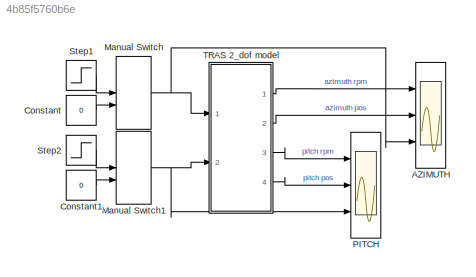
MODEL slx_4b85f5760b6e
KIND model
CONFIG PreLoadFcn = load tras_char
BLOCK [Scope] AZIMUTH
  DataFormat = StructureWithTime
  Floating = off
  NumInputPorts = 3
  Ports = [3]
  SampleTime = 0
  ShowLegends = off
  TimeRange = 20
  YMax = 10000~10~1
  YMin = -10000~-10~0
BLOCK [Constant] Constant
  Value = 0
BLOCK [Constant] Constant1
  Value = 0
BLOCK [ManualSwitch] Manual Switch
BLOCK [ManualSwitch] Manual Switch1
BLOCK [Scope] PITCH
  DataFormat = StructureWithTime
  Floating = off
  NumInputPorts = 3
  Ports = [3]
  SampleTime = 0
  SaveName = ScopeData1
  ShowLegends = off
  TimeRange = 20
  YMax = 5000~1~1
  YMin = -5000~-1~0
BLOCK [Step] Step1
  SampleTime = 0
BLOCK [Step] Step2
  SampleTime = 0
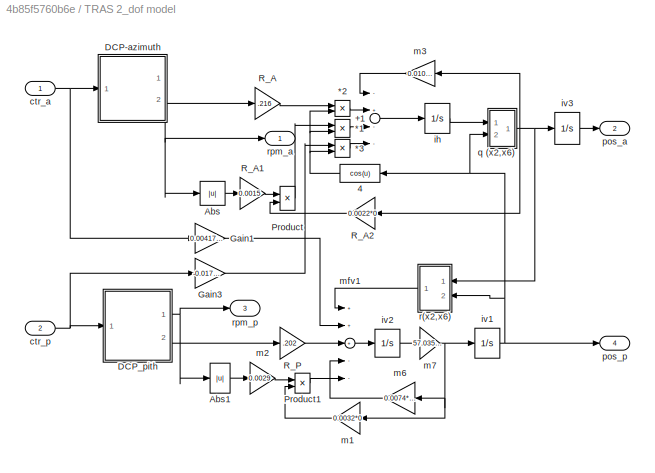
BLOCK [SubSystem] TRAS 2_dof model 
  FunctionWithSeparateData = off
  MaskHideContents = off
  MinAlgLoopOccurrences = off
  Opaque = off
  Ports = [2, 4]
  PropExecContextOutsideSubsystem = off
  RTWSystemCode = Auto
  RequestExecContextInheritance = off
BLOCK [Product] TRAS 2_dof model /*1
  Ports = [2, 1]
  RndMeth = Floor
BLOCK [Product] TRAS 2_dof model /*2
  Ports = [2, 1]
  RndMeth = Floor
BLOCK [Product] TRAS 2_dof model /*3
  Ports = [2, 1]
  RndMeth = Floor
BLOCK [Sum] TRAS 2_dof model /+1
  Inputs = -+--
  Ports = [4, 1]
BLOCK [Fcn] TRAS 2_dof model /4
  Expr = cos(u)
BLOCK [Abs] TRAS 2_dof model /Abs
BLOCK [Abs] TRAS 2_dof model /Abs1
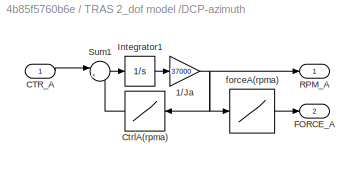
BLOCK [SubSystem] TRAS 2_dof model /DCP-azimuth
  FunctionWithSeparateData = off
  MaskHideContents = off
  MinAlgLoopOccurrences = off
  Opaque = off
  Ports = [1, 2]
  PropExecContextOutsideSubsystem = off
  RTWSystemCode = Auto
  RequestExecContextInheritance = off
BLOCK [Gain] TRAS 2_dof model /DCP-azimuth/1//Ja
  Gain = 37000
BLOCK [Inport] TRAS 2_dof model /DCP-azimuth/CTR_A
  IconDisplay = Port number
BLOCK [Lookup] TRAS 2_dof model /DCP-azimuth/CtrlA(rpma)
  InputValues = rpm_a
  Table = control_a
BLOCK [Outport] TRAS 2_dof model /DCP-azimuth/FORCE_A
  IconDisplay = Port number
  Port = 2
BLOCK [Integrator] TRAS 2_dof model /DCP-azimuth/Integrator1
  Ports = [1, 1]
BLOCK [Outport] TRAS 2_dof model /DCP-azimuth/RPM_A
  IconDisplay = Port number
BLOCK [Sum] TRAS 2_dof model /DCP-azimuth/Sum1
  IconShape = round
  Inputs = |+-
  Ports = [2, 1]
BLOCK [Lookup] TRAS 2_dof model /DCP-azimuth/forceA(rpma)
  InputValues = rpm_a
  Table = force_a
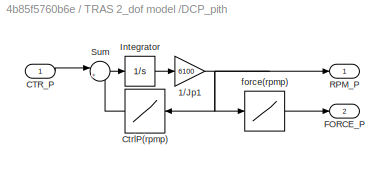
BLOCK [SubSystem] TRAS 2_dof model /DCP_pith
  FunctionWithSeparateData = off
  MaskHideContents = off
  MinAlgLoopOccurrences = off
  Opaque = off
  Ports = [1, 2]
  PropExecContextOutsideSubsystem = off
  RTWSystemCode = Auto
  RequestExecContextInheritance = off
BLOCK [Gain] TRAS 2_dof model /DCP_pith/1//Jp1
  Gain = 6100
  SaturateOnIntegerOverflow = off
BLOCK [Inport] TRAS 2_dof model /DCP_pith/CTR_P
  IconDisplay = Port number
BLOCK [Lookup] TRAS 2_dof model /DCP_pith/CtrlP(rpmp)
  InputValues = rpm_p
  Table = control_p
BLOCK [Outport] TRAS 2_dof model /DCP_pith/FORCE_P
  IconDisplay = Port number
  Port = 2
BLOCK [Integrator] TRAS 2_dof model /DCP_pith/Integrator
  Ports = [1, 1]
BLOCK [Outport] TRAS 2_dof model /DCP_pith/RPM_P
  IconDisplay = Port number
BLOCK [Sum] TRAS 2_dof model /DCP_pith/Sum
  IconShape = round
  Inputs = |+-
  Ports = [2, 1]
BLOCK [Lookup] TRAS 2_dof model /DCP_pith/force(rpmp)
  InputValues = rpm_p
  Table = force_p
BLOCK [Gain] TRAS 2_dof model /Gain1
  Gain = 0.00417495398545
BLOCK [Gain] TRAS 2_dof model /Gain3
  Gain = -0.01782003784180
BLOCK [Product] TRAS 2_dof model /Product
  Ports = [2, 1]
  RndMeth = Floor
BLOCK [Product] TRAS 2_dof model /Product1
  InputSameDT = off
  Ports = [2, 1]
  RndMeth = Floor
BLOCK [Gain] TRAS 2_dof model /R_A
  Gain = .216
  SaturateOnIntegerOverflow = off
BLOCK [Gain] TRAS 2_dof model /R_A1
  Gain = 0.0015
  SaturateOnIntegerOverflow = off
BLOCK [Gain] TRAS 2_dof model /R_A2
  Gain = 0.0022*0
  SaturateOnIntegerOverflow = off
BLOCK [Gain] TRAS 2_dof model /R_P
  Gain = .202
  SaturateOnIntegerOverflow = off
BLOCK [Inport] TRAS 2_dof model /ctr_a
  IconDisplay = Port number
BLOCK [Inport] TRAS 2_dof model /ctr_p
  IconDisplay = Port number
  Port = 2
BLOCK [Integrator] TRAS 2_dof model /ih
  LowerSaturationLimit = -10
  Ports = [1, 1]
  UpperSaturationLimit = 10
BLOCK [Integrator] TRAS 2_dof model /iv1
  LimitOutput = on
  LowerSaturationLimit = -pi/2
  Ports = [1, 1]
  UpperSaturationLimit = pi/2
BLOCK [Integrator] TRAS 2_dof model /iv2
  LowerSaturationLimit = -pi
  Ports = [1, 1]
  UpperSaturationLimit = pi
BLOCK [Integrator] TRAS 2_dof model /iv3
  LimitOutput = on
  LowerSaturationLimit = -6
  Ports = [1, 1]
  UpperSaturationLimit = 6
BLOCK [Gain] TRAS 2_dof model /m1
  Gain = 0.0032*0
BLOCK [Gain] TRAS 2_dof model /m2
  Gain = 0.0029
BLOCK [Gain] TRAS 2_dof model /m3
  Gain = 0.0108*0.4935*1.1051
  SaturateOnIntegerOverflow = off
BLOCK [Gain] TRAS 2_dof model /m6
  Gain = 0.0074*1.7175
  SaturateOnIntegerOverflow = off
BLOCK [Gain] TRAS 2_dof model /m7
  Gain = 57.0357*0.5833
BLOCK [Sum] TRAS 2_dof model /mfv1
  Inputs = +++--
  Ports = [5, 1]
BLOCK [Outport] TRAS 2_dof model /pos_a
  IconDisplay = Port number
  Port = 2
BLOCK [Outport] TRAS 2_dof model /pos_p
  IconDisplay = Port number
  Port = 4
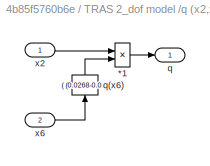
BLOCK [SubSystem] TRAS 2_dof model /q (x2,x6)
  FunctionWithSeparateData = off
  MaskHideContents = off
  MinAlgLoopOccurrences = off
  Opaque = off
  Ports = [2, 1]
  PropExecContextOutsideSubsystem = off
  RTWSystemCode = Auto
  RequestExecContextInheritance = off
BLOCK [Fcn] TRAS 2_dof model /q (x2,x6)/ q(x6)
  Expr = ( (0.0268-0.00300962066650)*cos(u)^2) +0.00300962066650
BLOCK [Product] TRAS 2_dof model /q (x2,x6)/*1
  Inputs = */
  Ports = [2, 1]
  RndMeth = Floor
BLOCK [Outport] TRAS 2_dof model /q (x2,x6)/q
  IconDisplay = Port number
BLOCK [Inport] TRAS 2_dof model /q (x2,x6)/x2
  IconDisplay = Port number
BLOCK [Inport] TRAS 2_dof model /q (x2,x6)/x6
  IconDisplay = Port number
  Port = 2
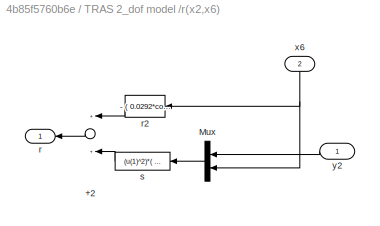
BLOCK [SubSystem] TRAS 2_dof model /r(x2,x6)
  FunctionWithSeparateData = off
  MaskHideContents = off
  MinAlgLoopOccurrences = off
  Opaque = off
  Ports = [2, 1]
  PropExecContextOutsideSubsystem = off
  RTWSystemCode = Auto
  RequestExecContextInheritance = off
BLOCK [Sum] TRAS 2_dof model /r(x2,x6)/+2
  Ports = [2, 1]
BLOCK [Mux] TRAS 2_dof model /r(x2,x6)/Mux
  DisplayOption = bar
  Inputs = 2
  Ports = [2, 1]
BLOCK [Outport] TRAS 2_dof model /r(x2,x6)/r
  IconDisplay = Port number
BLOCK [Fcn] TRAS 2_dof model /r(x2,x6)/r2
  Expr = - ( 0.0292*cos(u)+ 0.0546*sin(u))*1.7143
BLOCK [Fcn] TRAS 2_dof model /r(x2,x6)/s
  Expr = (u(1)^2)*(     -0.07389953104162*  0.28753198180218*sin(u(2))*cos(u(2)))
BLOCK [Inport] TRAS 2_dof model /r(x2,x6)/x6
  IconDisplay = Port number
  Port = 2
BLOCK [Inport] TRAS 2_dof model /r(x2,x6)/y2
  IconDisplay = Port number
BLOCK [Outport] TRAS 2_dof model /rpm_a
  IconDisplay = Port number
BLOCK [Outport] TRAS 2_dof model /rpm_p
  IconDisplay = Port number
  Port = 3
LINE Constant1:1 -> Manual Switch1:2
LINE Constant:1 -> Manual Switch:2
NET Manual Switch1:1 -> PITCH:3, TRAS 2_dof model :2
NET Manual Switch:1 -> AZIMUTH:3, TRAS 2_dof model :1
LINE Step1:1 -> Manual Switch:1
LINE Step2:1 -> Manual Switch1:1
LINE TRAS 2_dof model /*1:1 -> TRAS 2_dof model /+1:3
LINE TRAS 2_dof model /*2:1 -> TRAS 2_dof model /+1:2
LINE TRAS 2_dof model /*3:1 -> TRAS 2_dof model /+1:4
LINE TRAS 2_dof model /+1:1 -> TRAS 2_dof model /ih:1
NET TRAS 2_dof model /4:1 -> TRAS 2_dof model /*1:2, TRAS 2_dof model /*2:2, TRAS 2_dof model /*3:2
LINE TRAS 2_dof model /Abs1:1 -> TRAS 2_dof model /m2:1
LINE TRAS 2_dof model /Abs:1 -> TRAS 2_dof model /R_A1:1
NET TRAS 2_dof model /DCP-azimuth/1//Ja:1 -> TRAS 2_dof model /DCP-azimuth/CtrlA(rpma):1, TRAS 2_dof model /DCP-azimuth/RPM_A:1, TRAS 2_dof model /DCP-azimuth/forceA(rpma):1
LINE TRAS 2_dof model /DCP-azimuth/CTR_A:1 -> TRAS 2_dof model /DCP-azimuth/Sum1:1
LINE TRAS 2_dof model /DCP-azimuth/CtrlA(rpma):1 -> TRAS 2_dof model /DCP-azimuth/Sum1:2
LINE TRAS 2_dof model /DCP-azimuth/Integrator1:1 -> TRAS 2_dof model /DCP-azimuth/1//Ja:1
LINE TRAS 2_dof model /DCP-azimuth/Sum1:1 -> TRAS 2_dof model /DCP-azimuth/Integrator1:1
LINE TRAS 2_dof model /DCP-azimuth/forceA(rpma):1 -> TRAS 2_dof model /DCP-azimuth/FORCE_A:1
NET TRAS 2_dof model /DCP-azimuth:1 -> TRAS 2_dof model /Abs:1, TRAS 2_dof model /rpm_a:1
LINE TRAS 2_dof model /DCP-azimuth:2 -> TRAS 2_dof model /R_A:1
NET TRAS 2_dof model /DCP_pith/1//Jp1:1 -> TRAS 2_dof model /DCP_pith/CtrlP(rpmp):1, TRAS 2_dof model /DCP_pith/RPM_P:1, TRAS 2_dof model /DCP_pith/force(rpmp):1
LINE TRAS 2_dof model /DCP_pith/CTR_P:1 -> TRAS 2_dof model /DCP_pith/Sum:1
LINE TRAS 2_dof model /DCP_pith/CtrlP(rpmp):1 -> TRAS 2_dof model /DCP_pith/Sum:2
LINE TRAS 2_dof model /DCP_pith/Integrator:1 -> TRAS 2_dof model /DCP_pith/1//Jp1:1
LINE TRAS 2_dof model /DCP_pith/Sum:1 -> TRAS 2_dof model /DCP_pith/Integrator:1
LINE TRAS 2_dof model /DCP_pith/force(rpmp):1 -> TRAS 2_dof model /DCP_pith/FORCE_P:1
NET TRAS 2_dof model /DCP_pith:1 -> TRAS 2_dof model /Abs1:1, TRAS 2_dof model /rpm_p:1
LINE TRAS 2_dof model /DCP_pith:2 -> TRAS 2_dof model /R_P:1
LINE TRAS 2_dof model /Gain1:1 -> TRAS 2_dof model /mfv1:2
LINE TRAS 2_dof model /Gain3:1 -> TRAS 2_dof model /*3:1
LINE TRAS 2_dof model /Product1:1 -> TRAS 2_dof model /mfv1:5
LINE TRAS 2_dof model /Product:1 -> TRAS 2_dof model /*1:1
LINE TRAS 2_dof model /R_A1:1 -> TRAS 2_dof model /Product:1
LINE TRAS 2_dof model /R_A2:1 -> TRAS 2_dof model /Product:2
LINE TRAS 2_dof model /R_A:1 -> TRAS 2_dof model /*2:1
LINE TRAS 2_dof model /R_P:1 -> TRAS 2_dof model /mfv1:3
NET TRAS 2_dof model /ctr_a:1 -> TRAS 2_dof model /DCP-azimuth:1, TRAS 2_dof model /Gain1:1
NET TRAS 2_dof model /ctr_p:1 -> TRAS 2_dof model /DCP_pith:1, TRAS 2_dof model /Gain3:1
LINE TRAS 2_dof model /ih:1 -> TRAS 2_dof model /q (x2,x6):1
NET TRAS 2_dof model /iv1:1 -> TRAS 2_dof model /4:1, TRAS 2_dof model /pos_p:1, TRAS 2_dof model /q (x2,x6):2, TRAS 2_dof model /r(x2,x6):2
LINE TRAS 2_dof model /iv2:1 -> TRAS 2_dof model /m7:1
LINE TRAS 2_dof model /iv3:1 -> TRAS 2_dof model /pos_a:1
LINE TRAS 2_dof model /m1:1 -> TRAS 2_dof model /Product1:2
LINE TRAS 2_dof model /m2:1 -> TRAS 2_dof model /Product1:1
LINE TRAS 2_dof model /m3:1 -> TRAS 2_dof model /+1:1
LINE TRAS 2_dof model /m6:1 -> TRAS 2_dof model /mfv1:4
NET TRAS 2_dof model /m7:1 -> TRAS 2_dof model /iv1:1, TRAS 2_dof model /m1:1, TRAS 2_dof model /m6:1
LINE TRAS 2_dof model /mfv1:1 -> TRAS 2_dof model /iv2:1
LINE TRAS 2_dof model /q (x2,x6)/ q(x6):1 -> TRAS 2_dof model /q (x2,x6)/*1:2
LINE TRAS 2_dof model /q (x2,x6)/*1:1 -> TRAS 2_dof model /q (x2,x6)/q:1
LINE TRAS 2_dof model /q (x2,x6)/x2:1 -> TRAS 2_dof model /q (x2,x6)/*1:1
LINE TRAS 2_dof model /q (x2,x6)/x6:1 -> TRAS 2_dof model /q (x2,x6)/ q(x6):1
NET TRAS 2_dof model /q (x2,x6):1 -> TRAS 2_dof model /R_A2:1, TRAS 2_dof model /iv3:1, TRAS 2_dof model /m3:1, TRAS 2_dof model /r(x2,x6):1
LINE TRAS 2_dof model /r(x2,x6)/+2:1 -> TRAS 2_dof model /r(x2,x6)/r:1
LINE TRAS 2_dof model /r(x2,x6)/Mux:1 -> TRAS 2_dof model /r(x2,x6)/s:1
LINE TRAS 2_dof model /r(x2,x6)/r2:1 -> TRAS 2_dof model /r(x2,x6)/+2:1
LINE TRAS 2_dof model /r(x2,x6)/s:1 -> TRAS 2_dof model /r(x2,x6)/+2:2
NET TRAS 2_dof model /r(x2,x6)/x6:1 -> TRAS 2_dof model /r(x2,x6)/Mux:2, TRAS 2_dof model /r(x2,x6)/r2:1
LINE TRAS 2_dof model /r(x2,x6)/y2:1 -> TRAS 2_dof model /r(x2,x6)/Mux:1
LINE TRAS 2_dof model /r(x2,x6):1 -> TRAS 2_dof model /mfv1:1
LINE TRAS 2_dof model :1 -> AZIMUTH:1
LINE TRAS 2_dof model :2 -> AZIMUTH:2
LINE TRAS 2_dof model :3 -> PITCH:1
LINE TRAS 2_dof model :4 -> PITCH:2
note: NET lines group one-source signal fan-out (src -> all destinations, sorted); 1:1 wires keep LINE
